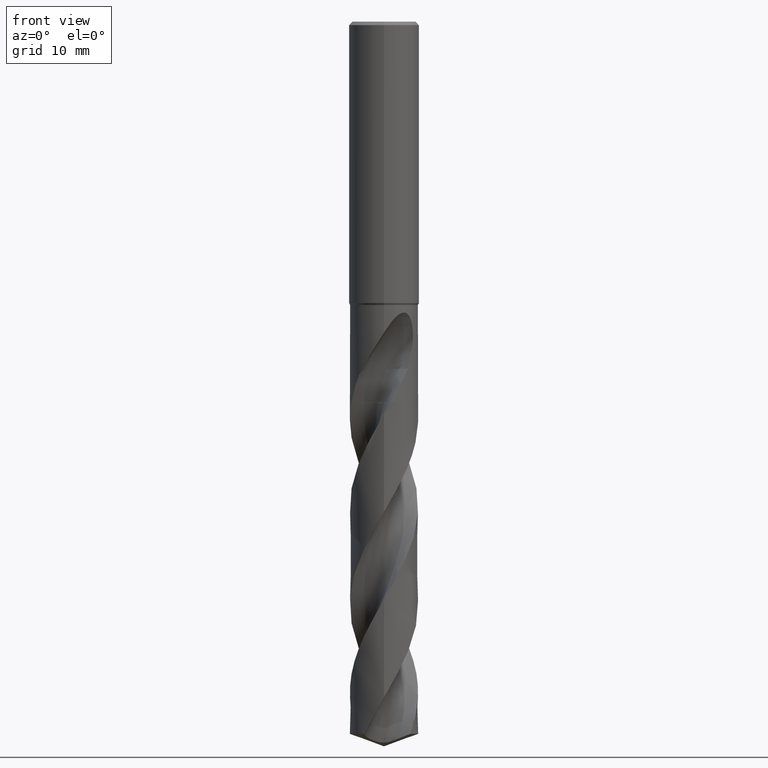
[diagram: clean part render]
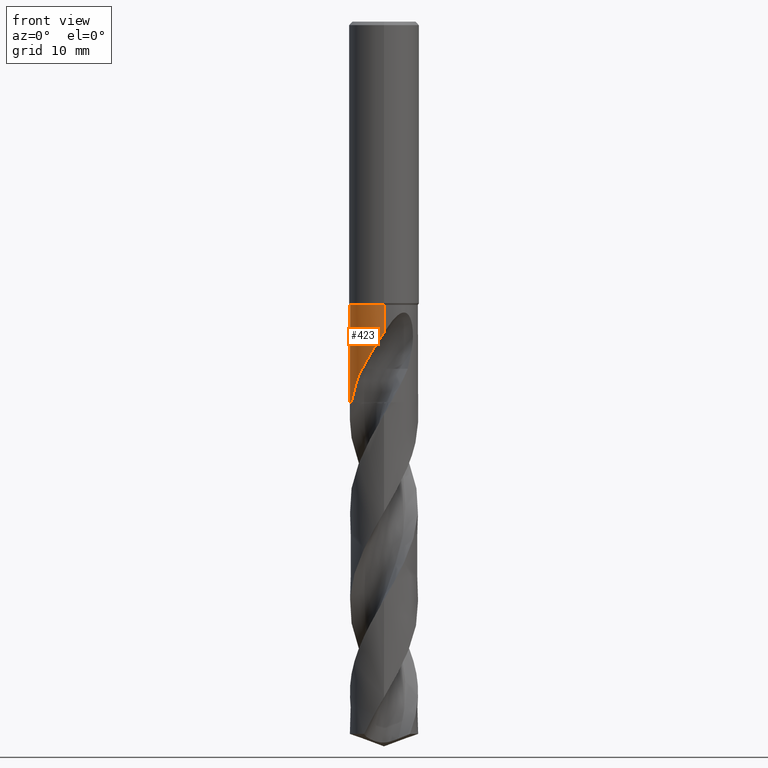
[diagram: same view with one face highlighted and labeled with its STEP entity id]
A machine part, front view. The second image highlights one B-rep face of the part: STEP entity #423.
In plain terms, the highlighted cylindrical surface (edge-blend (fillet) strip) has radius 4.85 mm, axis along (-0, -0, 1).
Its self-contained STEP definition (entity closure, byte-faithful):
#305=VERTEX_POINT('',#838);
#319=VERTEX_POINT('',#854);
#323=VERTEX_POINT('',#858);
#359=VERTEX_POINT('',#895);
#361=VERTEX_POINT('',#897);
#377=EDGE_CURVE('',#323,#319,#914,.T.);
#423=ADVANCED_FACE('',(#967),#968,.T.);
#425=VERTEX_POINT('',#970);
#437=VERTEX_POINT('',#983);
#455=VERTEX_POINT('',#1002);
#483=EDGE_CURVE('',#651,#455,#1032,.T.);
#487=EDGE_CURVE('',#359,#425,#1036,.T.);
#493=EDGE_CURVE('',#437,#319,#1042,.T.);
#527=EDGE_CURVE('',#425,#361,#1076,.T.);
#535=EDGE_CURVE('',#305,#359,#1085,.T.);
#563=EDGE_CURVE('',#323,#651,#1114,.T.);
#569=EDGE_CURVE('',#361,#437,#1121,.T.);
#651=VERTEX_POINT('',#1213);
#761=EDGE_CURVE('',#455,#305,#1332,.T.);
#838=CARTESIAN_POINT('',(5.93934081603853E-016,-4.85,-40.2598076211353));
#854=CARTESIAN_POINT('',(-0.975669107640978,4.75084937589007,-54.1));
#858=CARTESIAN_POINT('',(-4.65184773669027,-1.37215619907123,-54.1));
#895=CARTESIAN_POINT('',(0.0,4.85,-40.2598076211353));
#897=CARTESIAN_POINT('',(-3.94616449197908,2.81962511732384,-46.6824358902875));
#914=CIRCLE('',#1710,4.85);
#967=FACE_OUTER_BOUND('',#3702,.T.);
#968=CYLINDRICAL_SURFACE('',#3703,4.85);
#970=CARTESIAN_POINT('',(-1.43514920406635E-012,4.85,-44.1827605516052));
#983=CARTESIAN_POINT('',(-3.37112511098424,3.48683459402528,-49.3382));
#1002=CARTESIAN_POINT('',(1.4338169364368E-012,-4.85,-44.1827605516052));
#1032=B_SPLINE_CURVE_WITH_KNOTS('',3,(#4101,#4102,#4103,#4104,#4105,#4106,#4107,#4108,#4109,#4110,#4111,#4112,#4113,#4114,#4115,#4116,#4117,#4118,#4119,#4120,#4121,#4122,#4123,#4124,#4125,#4126,#4127,#4128,#4129,#4130),.UNSPECIFIED.,.F.,.F.,(4,2,2,2,2,2,2,2,2,2,2,2,2,2,4),(0.0,2.3762271201191,3.67370289534617,4.8488893774538,6.21417315886465,7.85419155137431,9.2756234065579,9.9197679187185,10.3905589756976,10.8360649855325,11.4012159121938,12.2280546353885,13.4035031014055,14.17270711125,14.9810882626708),.UNSPECIFIED.);
#1036=LINE('',#4135,#4136);
#1042=B_SPLINE_CURVE_WITH_KNOTS('',3,(#4144,#4145,#4146,#4147,#4148,#4149,#4150,#4151,#4152,#4153),.UNSPECIFIED.,.F.,.F.,(4,2,2,2,4),(0.0,1.43012431584753,2.60467715176009,3.25722449031958,5.20857314704288),.UNSPECIFIED.);
#1076=B_SPLINE_CURVE_WITH_KNOTS('',3,(#4313,#4314,#4315,#4316,#4317,#4318,#4319,#4320,#4321,#4322,#4323,#4324,#4325,#4326,#4327,#4328,#4329,#4330,#4331,#4332,#4333,#4334,#4335,#4336,#4337,#4338,#4339,#4340,#4341,#4342),.UNSPECIFIED.,.F.,.F.,(4,2,2,2,2,2,2,2,2,2,2,2,2,2,4),(0.0,2.3762271201191,3.67370289534617,4.84888937745357,6.2141731588642,7.85419155137378,9.27562340655728,9.91976791871792,10.3905589756972,10.8360649855321,11.4012159121932,12.2280546353878,13.4035031014055,14.1727071112507,14.9810882626723),.UNSPECIFIED.);
#1085=CIRCLE('',#4362,4.85);
#1114=B_SPLINE_CURVE_WITH_KNOTS('',3,(#4442,#4443,#4444,#4445,#4446,#4447,#4448,#4449,#4450,#4451,#4452,#4453),.UNSPECIFIED.,.F.,.F.,(4,2,2,2,2,4),(0.0,1.3839540230768,1.90614757656692,2.79148085400627,4.00873106687085,8.95784970292631),.UNSPECIFIED.);
#1121=B_SPLINE_CURVE_WITH_KNOTS('',3,(#4469,#4470,#4471,#4472),.UNSPECIFIED.,.F.,.F.,(4,4),(0.0,2.78739152141585),.UNSPECIFIED.);
#1213=CARTESIAN_POINT('',(-3.09049055902257,-3.73782933058645,-49.3382));
#1332=LINE('',#7910,#7911);
#1710=AXIS2_PLACEMENT_3D('',#8899,#8900,#8901);
#3702=EDGE_LOOP('',(#8974,#8975,#8976,#8977,#8978,#8979,#8980,#8981,#8982));
#3703=AXIS2_PLACEMENT_3D('',#8983,#8984,#8985);
#4101=CARTESIAN_POINT('',(-3.09049055902257,-3.73782933058645,-49.3382));
#4102=CARTESIAN_POINT('',(-2.77056708536733,-4.0023466178929,-48.6636160535005));
#4103=CARTESIAN_POINT('',(-2.40272764155632,-4.23748409626241,-48.0346860806347));
#4104=CARTESIAN_POINT('',(-1.76132534708755,-4.52569442773003,-46.9840156378744));
#4105=CARTESIAN_POINT('',(-1.53051864094096,-4.60860165937861,-46.6143544124009));
#4106=CARTESIAN_POINT('',(-1.08370604075304,-4.73250936551244,-45.8987862125341));
#4107=CARTESIAN_POINT('',(-0.869695147821074,-4.77628566222979,-45.5562145904863));
#4108=CARTESIAN_POINT('',(-0.406451737971464,-4.83946563587523,-44.8178819027601));
#4109=CARTESIAN_POINT('',(-0.153349740875167,-4.85429853304564,-44.4163415299652));
#4110=CARTESIAN_POINT('',(0.408725098925513,-4.84247540513283,-43.5573140542112));
#4111=CARTESIAN_POINT('',(0.741978728853475,-4.80590693807448,-43.0685180026716));
#4112=CARTESIAN_POINT('',(1.3846152256381,-4.65822612739052,-42.2625271078447));
#4113=CARTESIAN_POINT('',(1.74016020785623,-4.54571205087707,-41.8692351948196));
#4114=CARTESIAN_POINT('',(2.27827412978382,-4.2856393545849,-41.5009568018169));
#4115=CARTESIAN_POINT('',(2.45639347092478,-4.1874558905599,-41.4099404422398));
#4116=CARTESIAN_POINT('',(2.76849949073739,-3.985293735067,-41.3400236216453));
#4117=CARTESIAN_POINT('',(2.89651168855472,-3.89322757879833,-41.3387181441813));
#4118=CARTESIAN_POINT('',(3.13494131523776,-3.70359052714924,-41.3999100876274));
#4119=CARTESIAN_POINT('',(3.23921853421574,-3.61199962280225,-41.4572829292435));
#4120=CARTESIAN_POINT('',(3.4514215153723,-3.41128532100654,-41.636795916453));
#4121=CARTESIAN_POINT('',(3.54959621632098,-3.30727014005278,-41.7693339454723));
#4122=CARTESIAN_POINT('',(3.75068974429629,-3.08014539699886,-42.1322642060482));
#4123=CARTESIAN_POINT('',(3.8468084441993,-2.95645974092105,-42.40145119891));
#4124=CARTESIAN_POINT('',(4.02755609437493,-2.70810054110873,-43.1546064839387));
#4125=CARTESIAN_POINT('',(4.09290054135659,-2.60231150585033,-43.6909936025777));
#4126=CARTESIAN_POINT('',(4.12524333707654,-2.55057832804423,-44.6837140299466));
#4127=CARTESIAN_POINT('',(4.11763861617625,-2.56318765864804,-45.0790642950395));
#4128=CARTESIAN_POINT('',(4.06392553116516,-2.6475718127601,-45.8814278287354));
#4129=CARTESIAN_POINT('',(4.01596611785001,-2.72193528763622,-46.2854210993));
#4130=CARTESIAN_POINT('',(3.94616449197908,-2.81962511732384,-46.6824358902875));
#4135=CARTESIAN_POINT('',(-5.93934081603853E-016,4.85,-47.1799038105677));
#4136=VECTOR('',#9040,1.0);
#4144=CARTESIAN_POINT('',(-3.37112511098424,3.48683459402528,-49.3382));
#4145=CARTESIAN_POINT('',(-3.20829101941632,3.64426508870649,-49.7576655118239));
#4146=CARTESIAN_POINT('',(-3.03462694722612,3.79133145241325,-50.1621970212828));
#4147=CARTESIAN_POINT('',(-2.6706724258729,4.05350736835992,-50.9214400176788));
#4148=CARTESIAN_POINT('',(-2.49946674467846,4.16189383668545,-51.2596561040326));
#4149=CARTESIAN_POINT('',(-2.20550661383901,4.3211686922805,-51.837669941174));
#4150=CARTESIAN_POINT('',(-2.09864238710729,4.37405565125543,-52.0451252904263));
#4151=CARTESIAN_POINT('',(-1.66558145424009,4.56891503354136,-52.8709734684886));
#4152=CARTESIAN_POINT('',(-1.32561486547622,4.67898196055955,-53.4827032801534));
#4153=CARTESIAN_POINT('',(-0.975669107640981,4.75084937589007,-54.1));
#4313=CARTESIAN_POINT('',(3.09049055902257,3.73782933058645,-49.3382));
#4314=CARTESIAN_POINT('',(2.77056708536733,4.0023466178929,-48.6636160535005));
#4315=CARTESIAN_POINT('',(2.40272764155632,4.23748409626241,-48.0346860806347));
#4316=CARTESIAN_POINT('',(1.76132534708756,4.52569442773003,-46.9840156378744));
#4317=CARTESIAN_POINT('',(1.53051864094097,4.60860165937861,-46.6143544124009));
#4318=CARTESIAN_POINT('',(1.08370604075308,4.73250936551243,-45.8987862125342));
#4319=CARTESIAN_POINT('',(0.869695147821154,4.77628566222978,-45.5562145904864));
#4320=CARTESIAN_POINT('',(0.406451737971348,4.83946563587525,-44.8178819027599));
#4321=CARTESIAN_POINT('',(0.153349740875114,4.85429853304564,-44.4163415299651));
#4322=CARTESIAN_POINT('',(-0.408725098925497,4.84247540513282,-43.5573140542112));
#4323=CARTESIAN_POINT('',(-0.741978728853477,4.80590693807448,-43.0685180026716));
#4324=CARTESIAN_POINT('',(-1.3846152256381,4.65822612739052,-42.2625271078447));
#4325=CARTESIAN_POINT('',(-1.74016020785623,4.54571205087707,-41.8692351948196));
#4326=CARTESIAN_POINT('',(-2.27827412978385,4.28563935458489,-41.5009568018169));
#4327=CARTESIAN_POINT('',(-2.45639347092479,4.18745589055989,-41.4099404422398));
#4328=CARTESIAN_POINT('',(-2.76849949073742,3.98529373506698,-41.3400236216452));
#4329=CARTESIAN_POINT('',(-2.89651168855474,3.89322757879832,-41.3387181441813));
#4330=CARTESIAN_POINT('',(-3.13494131523774,3.70359052714926,-41.3999100876274));
#4331=CARTESIAN_POINT('',(-3.23921853421569,3.6119996228023,-41.4572829292435));
#4332=CARTESIAN_POINT('',(-3.45142151537231,3.41128532100654,-41.636795916453));
#4333=CARTESIAN_POINT('',(-3.54959621632099,3.30727014005277,-41.7693339454723));
#4334=CARTESIAN_POINT('',(-3.75068974429631,3.08014539699884,-42.1322642060482));
#4335=CARTESIAN_POINT('',(-3.84680844419931,2.95645974092103,-42.40145119891));
#4336=CARTESIAN_POINT('',(-4.02755609437499,2.70810054110866,-43.1546064839389));
#4337=CARTESIAN_POINT('',(-4.09290054135661,2.60231150585032,-43.690993602578));
#4338=CARTESIAN_POINT('',(-4.12524333707655,2.55057832804423,-44.6837140299466));
#4339=CARTESIAN_POINT('',(-4.11763861617625,2.56318765864804,-45.0790642950396));
#4340=CARTESIAN_POINT('',(-4.06392553116516,2.6475718127601,-45.8814278287354));
#4341=CARTESIAN_POINT('',(-4.01596611785002,2.72193528763622,-46.2854210993));
#4342=CARTESIAN_POINT('',(-3.94616449197908,2.81962511732384,-46.6824358902875));
#4362=AXIS2_PLACEMENT_3D('',#9067,#9068,#9069);
#4442=CARTESIAN_POINT('',(-4.65184773669028,-1.37215619907122,-54.1));
#4443=CARTESIAN_POINT('',(-4.58674984811997,-1.59284934305446,-53.7001611508074));
#4444=CARTESIAN_POINT('',(-4.50538987123554,-1.81086398644322,-53.3016087250637));
#4445=CARTESIAN_POINT('',(-4.37023268990009,-2.10509727011854,-52.7548250798224));
#4446=CARTESIAN_POINT('',(-4.33168864810424,-2.18333885412981,-52.6091981990099));
#4447=CARTESIAN_POINT('',(-4.21926172163202,-2.39652077110583,-52.1992761907577));
#4448=CARTESIAN_POINT('',(-4.14399793761586,-2.52399532570564,-51.9415821895231));
#4449=CARTESIAN_POINT('',(-3.95734708204484,-2.81090189701387,-51.3192719222594));
#4450=CARTESIAN_POINT('',(-3.86976324428265,-2.9247636688209,-51.0301009195622));
#4451=CARTESIAN_POINT('',(-3.6120611414748,-3.25393469849513,-50.2416228637594));
#4452=CARTESIAN_POINT('',(-3.36207159796306,-3.51328225723908,-49.7529294684167));
#4453=CARTESIAN_POINT('',(-3.09049055902257,-3.73782933058645,-49.3382));
#4469=CARTESIAN_POINT('',(-3.9461644920317,2.8196251172502,-46.6824358903164));
#4470=CARTESIAN_POINT('',(-3.78980448944643,3.03845643862024,-47.5717884085423));
#4471=CARTESIAN_POINT('',(-3.60134889325037,3.26425071382833,-48.4664334268852));
#4472=CARTESIAN_POINT('',(-3.37112511098424,3.48683459402529,-49.3382));
#7910=CARTESIAN_POINT('',(5.93934081603853E-016,-4.85,-47.1799038105677));
#7911=VECTOR('',#9301,1.0);
#8899=CARTESIAN_POINT('',(0.0,0.0,-54.1));
#8900=DIRECTION('',(0.0,0.0,-1.0));
#8901=DIRECTION('',(0.0,1.0,0.0));
#8974=ORIENTED_EDGE('',*,*,#487,.T.);
#8975=ORIENTED_EDGE('',*,*,#527,.T.);
#8976=ORIENTED_EDGE('',*,*,#569,.T.);
#8977=ORIENTED_EDGE('',*,*,#493,.T.);
#8978=ORIENTED_EDGE('',*,*,#377,.F.);
#8979=ORIENTED_EDGE('',*,*,#563,.T.);
#8980=ORIENTED_EDGE('',*,*,#483,.T.);
#8981=ORIENTED_EDGE('',*,*,#761,.T.);
#8982=ORIENTED_EDGE('',*,*,#535,.T.);
#8983=CARTESIAN_POINT('',(0.0,0.0,-47.1799038105677));
#8984=DIRECTION('',(-0.0,-0.0,1.0));
#8985=DIRECTION('',(0.0,1.0,0.0));
#9040=DIRECTION('',(0.0,0.0,-1.0));
#9067=CARTESIAN_POINT('',(0.0,0.0,-40.2598076211353));
#9068=DIRECTION('',(0.0,0.0,-1.0));
#9069=DIRECTION('',(0.0,1.0,0.0));
#9301=DIRECTION('',(-0.0,-0.0,1.0));